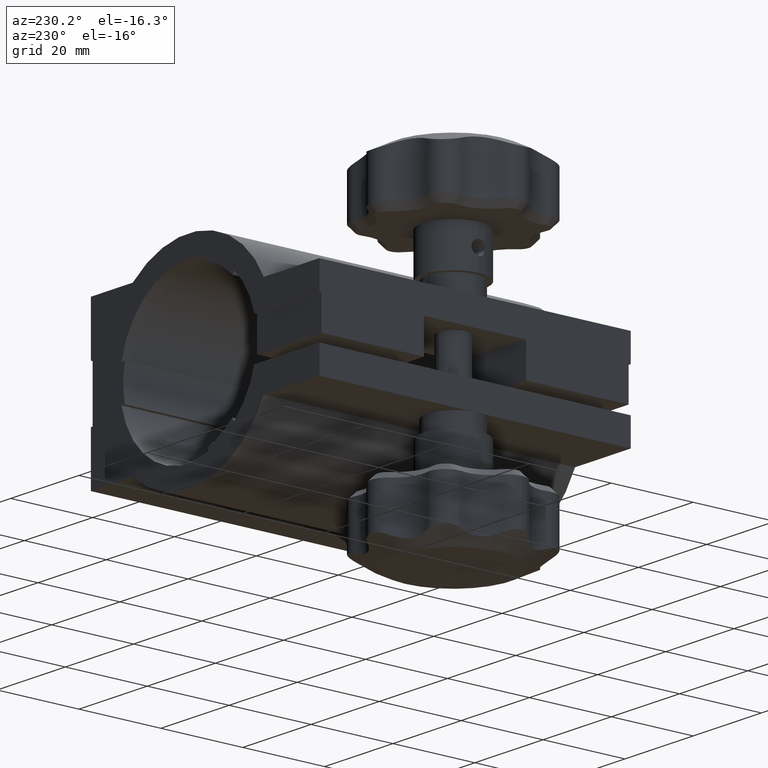
[diagram: clean part render]
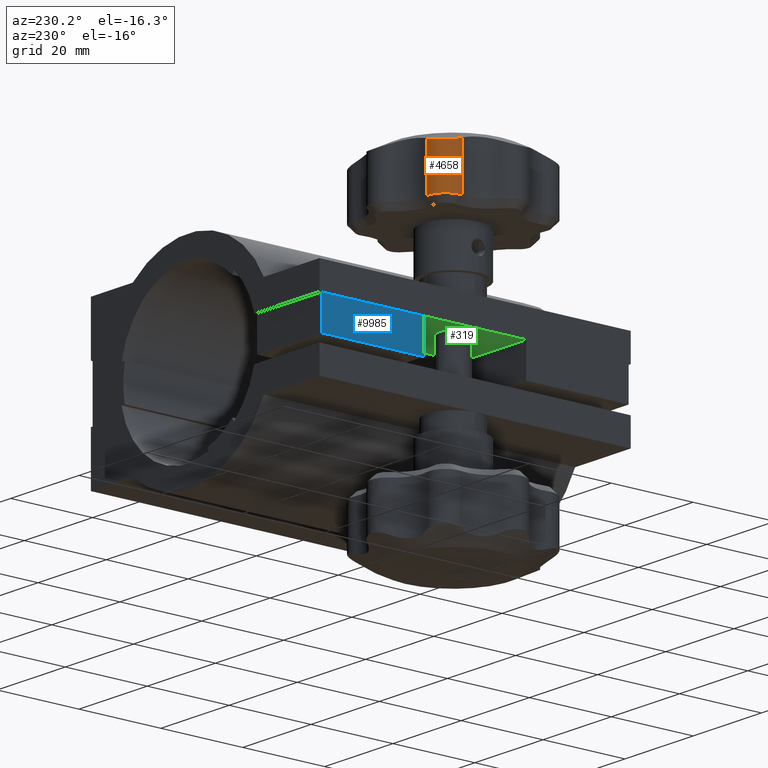
[diagram: same view with three faces highlighted in distinct colors, each labeled with its STEP entity id]
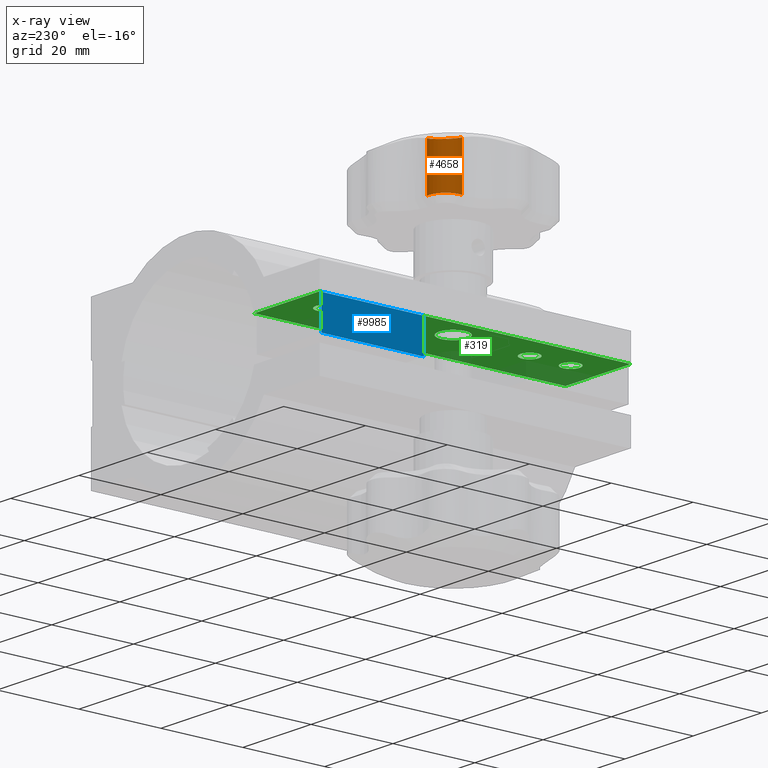
[diagram: x-ray of the same camera — body ghosted, the three highlighted faces saturated]
A machine part, auxiliary view with three faces highlighted in distinct colors.
The next image is the same camera in x-ray (body ghosted, the three faces saturated) — at least one of them is partly hidden behind the body in this view.
Their STEP definitions:

[orange] entity #4658 — the highlighted cylindrical surface (edge-blend (fillet) strip) has radius 3.9996 mm, axis along (-0, 0, -1).
#209 = ORIENTED_EDGE ( 'NONE', *, *, #9528, .T. ) ;
#216 = DIRECTION ( 'NONE',  ( -5.744216728366652700E-017, 1.068136628142174300E-018, -1.000000000000000000 ) ) ;
#434 = FACE_OUTER_BOUND ( 'NONE', #6749, .T. ) ;
#741 = ORIENTED_EDGE ( 'NONE', *, *, #7880, .T. ) ;
#1422 = CARTESIAN_POINT ( 'NONE',  ( -44.85279802072815200, -22.95083891127139400, 37.63736774476461700 ) ) ;
#1492 = CARTESIAN_POINT ( 'NONE',  ( -47.39795324385067900, -27.15971093928271800, 38.12596214254276100 ) ) ;
#1835 = CARTESIAN_POINT ( 'NONE',  ( -42.62832790717669000, -22.76452063433292100, 38.24033585891610400 ) ) ;
#1838 = CIRCLE ( 'NONE', #2938, 3.999638659272490400 ) ;
#1937 = VERTEX_POINT ( 'NONE', #9582 ) ;
#1958 = EDGE_CURVE ( 'NONE', #1937, #5986, #8323, .T. ) ;
#2247 = CARTESIAN_POINT ( 'NONE',  ( -46.47931321446090200, -24.09531898611165700, 37.50011448571287800 ) ) ;
#2301 = VERTEX_POINT ( 'NONE', #8770 ) ;
#2530 = CARTESIAN_POINT ( 'NONE',  ( -42.62832790717669000, -22.76452063433289700, 27.00000000000001100 ) ) ;
#2938 = AXIS2_PLACEMENT_3D ( 'NONE', #6751, #10058, #6610 ) ;
#3146 = CARTESIAN_POINT ( 'NONE',  ( -45.30747206479046700, -23.15944995574653100, 37.56706851643817700 ) ) ;
#3351 = VERTEX_POINT ( 'NONE', #2530 ) ;
#3408 = DIRECTION ( 'NONE',  ( 1.000000000000000000, -8.674400983474555500E-016, 0.0000000000000000000 ) ) ;
#3538 = CIRCLE ( 'NONE', #5726, 3.999638659272490400 ) ;
#3938 = CARTESIAN_POINT ( 'NONE',  ( -47.33547936566713300, -27.47167209282341100, 38.24033585891610400 ) ) ;
#3973 = CARTESIAN_POINT ( 'NONE',  ( -47.39676900332204200, -26.20088793460287800, 37.84158332470187200 ) ) ;
#4310 = CARTESIAN_POINT ( 'NONE',  ( -42.62832790717669000, -22.76452063433292100, 40.49999999999996400 ) ) ;
#4374 = ORIENTED_EDGE ( 'NONE', *, *, #5686, .F. ) ;
#4552 = VECTOR ( 'NONE', #4881, 1000.000000000000000 ) ;
#4640 = VERTEX_POINT ( 'NONE', #1835 ) ;
#4658 = ADVANCED_FACE ( 'NONE', ( #434 ), #8747, .T. ) ;
#4676 = B_SPLINE_CURVE_WITH_KNOTS ( 'NONE', 3,
 ( #7280, #5599, #9769, #9874, #10697, #4788, #8132, #9007, #1422, #4901, #3146, #5667, #9038, #2247, #9803, #8068, #5750, #6430, #10589, #8974, #3973, #7241, #1492, #3938 ),
 .UNSPECIFIED., .F., .F.,
 ( 4, 2, 2, 2, 2, 2, 2, 2, 2, 2, 2, 4 ),
 ( 2.138698642105214700E-007, 0.001000929719184339300, 0.001501287643844403600, 0.002001645568504467700, 0.002502003493164532300, 0.003002361417824596400, 0.004003077267144722900, 0.005003793116464848500, 0.005504151041124915600, 0.006004508965784981900, 0.007005224815105136200, 0.008005940664425290400 ),
 .UNSPECIFIED. ) ;
#4788 = CARTESIAN_POINT ( 'NONE',  ( -44.22546935347906300, -22.76647890536097000, 37.76518380246591300 ) ) ;
#4881 = DIRECTION ( 'NONE',  ( -5.744216728366652700E-017, 1.068136628142174300E-018, -1.000000000000000000 ) ) ;
#4901 = CARTESIAN_POINT ( 'NONE',  ( -45.15694850998780700, -23.08272396788176600, 37.58808820424980000 ) ) ;
#5067 = CARTESIAN_POINT ( 'NONE',  ( -43.41370849898481100, -26.68629150101525100, 40.49999999999996400 ) ) ;
#5599 = CARTESIAN_POINT ( 'NONE',  ( -42.94026814796043800, -22.70205094417412900, 38.12596980974652200 ) ) ;
#5667 = CARTESIAN_POINT ( 'NONE',  ( -45.73824124013601300, -23.41443786194445000, 37.51709815624107600 ) ) ;
#5686 = EDGE_CURVE ( 'NONE', #4640, #1937, #4676, .T. ) ;
#5726 = AXIS2_PLACEMENT_3D ( 'NONE', #7471, #8169, #9839 ) ;
#5750 = CARTESIAN_POINT ( 'NONE',  ( -47.01633345922389400, -24.94105235144986900, 37.58778657505536100 ) ) ;
#5986 = VERTEX_POINT ( 'NONE', #8677 ) ;
#6112 = AXIS2_PLACEMENT_3D ( 'NONE', #5067, #9157, #3408 ) ;
#6139 = LINE ( 'NONE', #4310, #10529 ) ;
#6430 = CARTESIAN_POINT ( 'NONE',  ( -47.14878044121587700, -25.24615127184601000, 37.63717544867557100 ) ) ;
#6610 = DIRECTION ( 'NONE',  ( -1.000000000000000000, 8.674400983474555500E-016, 0.0000000000000000000 ) ) ;
#6749 = EDGE_LOOP ( 'NONE', ( #8707, #209, #741, #10211, #4374 ) ) ;
#6751 = CARTESIAN_POINT ( 'NONE',  ( -43.41370849898479600, -26.68629150101525100, 27.00000000000001100 ) ) ;
#7072 = EDGE_CURVE ( 'NONE', #4640, #3351, #6139, .T. ) ;
#7241 = CARTESIAN_POINT ( 'NONE',  ( -47.42317277148750800, -26.84308388291383800, 38.02363117736457800 ) ) ;
#7280 = CARTESIAN_POINT ( 'NONE',  ( -42.62832790717669000, -22.76452063433292100, 38.24033585891610400 ) ) ;
#7471 = CARTESIAN_POINT ( 'NONE',  ( -43.41370849898479600, -26.68629150101525100, 27.00000000000001100 ) ) ;
#7880 = EDGE_CURVE ( 'NONE', #2301, #5986, #3538, .T. ) ;
#8068 = CARTESIAN_POINT ( 'NONE',  ( -46.93961310875495500, -24.79080392035385900, 37.56684448148188700 ) ) ;
#8132 = CARTESIAN_POINT ( 'NONE',  ( -44.38462221413450200, -22.80284501860700200, 37.72960049356522200 ) ) ;
#8169 = DIRECTION ( 'NONE',  ( 5.744216728366652700E-017, -1.068136628142174300E-018, 1.000000000000000000 ) ) ;
#8323 = LINE ( 'NONE', #10570, #4552 ) ;
#8677 = CARTESIAN_POINT ( 'NONE',  ( -47.33547936566711900, -27.47167209282341100, 27.00000000000001400 ) ) ;
#8707 = ORIENTED_EDGE ( 'NONE', *, *, #7072, .T. ) ;
#8747 = CYLINDRICAL_SURFACE ( 'NONE', #6112, 3.999638659272490400 ) ;
#8770 = CARTESIAN_POINT ( 'NONE',  ( -47.41334715825727400, -26.68629150101525100, 27.00000000000001100 ) ) ;
#8974 = CARTESIAN_POINT ( 'NONE',  ( -47.34347505883442900, -25.87294497304557300, 37.76170017255969900 ) ) ;
#9007 = CARTESIAN_POINT ( 'NONE',  ( -44.69828612999259600, -22.89502649657290300, 37.66569268401078600 ) ) ;
#9038 = CARTESIAN_POINT ( 'NONE',  ( -46.00166590177387600, -23.61814102786626500, 37.50024724159735000 ) ) ;
#9157 = DIRECTION ( 'NONE',  ( -5.744216728366652700E-017, 1.068136628142174300E-018, -1.000000000000000000 ) ) ;
#9528 = EDGE_CURVE ( 'NONE', #3351, #2301, #1838, .T. ) ;
#9582 = CARTESIAN_POINT ( 'NONE',  ( -47.33547936566713300, -27.47167209282341100, 38.24033585891610400 ) ) ;
#9769 = CARTESIAN_POINT ( 'NONE',  ( -43.25710625937504300, -22.67678188941502500, 38.02355978083539900 ) ) ;
#9803 = CARTESIAN_POINT ( 'NONE',  ( -46.68478337521381100, -24.36072772368684300, 37.51702702024472600 ) ) ;
#9839 = DIRECTION ( 'NONE',  ( -1.000000000000000000, 8.674400983474555500E-016, 0.0000000000000000000 ) ) ;
#9874 = CARTESIAN_POINT ( 'NONE',  ( -43.73945824390319400, -22.69669351951546000, 37.88685030365017100 ) ) ;
#10058 = DIRECTION ( 'NONE',  ( 5.744216728366652700E-017, -1.068136628142174300E-018, 1.000000000000000000 ) ) ;
#10211 = ORIENTED_EDGE ( 'NONE', *, *, #1958, .F. ) ;
#10529 = VECTOR ( 'NONE', #216, 1000.000000000000000 ) ;
#10570 = CARTESIAN_POINT ( 'NONE',  ( -47.33547936566714800, -27.47167209282341100, 40.49999999999996400 ) ) ;
#10589 = CARTESIAN_POINT ( 'NONE',  ( -47.20479314949079000, -25.40112276749178100, 37.66557426353955400 ) ) ;
#10697 = CARTESIAN_POINT ( 'NONE',  ( -43.90255016953159400, -22.71326742720494700, 37.84386468517838900 ) ) ;

[blue] entity #9985 — the highlighted planar face has unit normal (1, -0, 0).
#559 = LINE ( 'NONE', #9313, #1337 ) ;
#1222 = EDGE_CURVE ( 'NONE', #8828, #10396, #2681, .T. ) ;
#1337 = VECTOR ( 'NONE', #7480, 1000.000000000000000 ) ;
#1488 = ORIENTED_EDGE ( 'NONE', *, *, #2632, .F. ) ;
#1575 = VECTOR ( 'NONE', #5682, 1000.000000000000000 ) ;
#1685 = CARTESIAN_POINT ( 'NONE',  ( -38.49999999999986500, -25.50000000000016700, 5.000000000000114600 ) ) ;
#1936 = ORIENTED_EDGE ( 'NONE', *, *, #1222, .T. ) ;
#2007 = CARTESIAN_POINT ( 'NONE',  ( -38.49999999999985100, -25.50000000000016700, -2.999999999999882300 ) ) ;
#2216 = PLANE ( 'NONE',  #6692 ) ;
#2632 = EDGE_CURVE ( 'NONE', #8633, #10396, #6120, .T. ) ;
#2681 = LINE ( 'NONE', #7752, #7222 ) ;
#3662 = EDGE_CURVE ( 'NONE', #7944, #8828, #7400, .T. ) ;
#3877 = DIRECTION ( 'NONE',  ( 1.000000000000000000, -2.896988204881273000E-015, 3.011282145118054400E-016 ) ) ;
#4271 = VECTOR ( 'NONE', #8574, 1000.000000000000000 ) ;
#4516 = CARTESIAN_POINT ( 'NONE',  ( -38.49999999999993600, -0.5000000000000359700, -2.999999999999993800 ) ) ;
#4606 = EDGE_CURVE ( 'NONE', #7944, #8633, #559, .T. ) ;
#4911 = CARTESIAN_POINT ( 'NONE',  ( -38.49999999999986500, -25.50000000000016700, 5.000000000000114600 ) ) ;
#5259 = DIRECTION ( 'NONE',  ( 3.011282145118056900E-016, 8.314313866055646900E-017, -1.000000000000000000 ) ) ;
#5682 = DIRECTION ( 'NONE',  ( -2.543104615781996800E-015, 1.000000000000000000, 8.314313866055995700E-017 ) ) ;
#6120 = LINE ( 'NONE', #2007, #4271 ) ;
#6173 = CARTESIAN_POINT ( 'NONE',  ( -38.49999999999985100, -25.50000000000016700, -2.999999999999882300 ) ) ;
#6692 = AXIS2_PLACEMENT_3D ( 'NONE', #8029, #3877, #9699 ) ;
#7222 = VECTOR ( 'NONE', #5259, 1000.000000000000000 ) ;
#7400 = LINE ( 'NONE', #1685, #1575 ) ;
#7480 = DIRECTION ( 'NONE',  ( 3.011282145118056900E-016, 8.314313866055646900E-017, -1.000000000000000000 ) ) ;
#7752 = CARTESIAN_POINT ( 'NONE',  ( -38.49999999999993600, -0.5000000000000359700, -2.999999999999993800 ) ) ;
#7944 = VERTEX_POINT ( 'NONE', #4911 ) ;
#8029 = CARTESIAN_POINT ( 'NONE',  ( -38.49999999999985100, -25.50000000000016700, -2.999999999999882300 ) ) ;
#8574 = DIRECTION ( 'NONE',  ( -2.543104615781996800E-015, 1.000000000000000000, 8.314313866055995700E-017 ) ) ;
#8633 = VERTEX_POINT ( 'NONE', #6173 ) ;
#8828 = VERTEX_POINT ( 'NONE', #9057 ) ;
#9057 = CARTESIAN_POINT ( 'NONE',  ( -38.49999999999995000, -0.4999999999999950000, 5.000000000000000000 ) ) ;
#9062 = ORIENTED_EDGE ( 'NONE', *, *, #3662, .T. ) ;
#9313 = CARTESIAN_POINT ( 'NONE',  ( -38.49999999999985100, -25.50000000000016700, -2.999999999999882300 ) ) ;
#9699 = DIRECTION ( 'NONE',  ( -3.011282145118056900E-016, -8.314313866055646900E-017, 1.000000000000000000 ) ) ;
#9781 = ORIENTED_EDGE ( 'NONE', *, *, #4606, .F. ) ;
#9985 = ADVANCED_FACE ( 'NONE', ( #10640 ), #2216, .F. ) ;
#10396 = VERTEX_POINT ( 'NONE', #4516 ) ;
#10640 = FACE_OUTER_BOUND ( 'NONE', #10758, .T. ) ;
#10758 = EDGE_LOOP ( 'NONE', ( #1936, #1488, #9781, #9062 ) ) ;

[green] entity #319 — the highlighted planar face has unit normal (0, 0, 1).
#143 = LINE ( 'NONE', #5456, #6145 ) ;
#147 = DIRECTION ( 'NONE',  ( -1.000000000000000000, 0.0000000000000000000, 0.0000000000000000000 ) ) ;
#149 = CARTESIAN_POINT ( 'NONE',  ( -30.50000000000000000, -68.00000000000000000, 5.000000000000005300 ) ) ;
#187 = EDGE_CURVE ( 'NONE', #9054, #8763, #4523, .T. ) ;
#255 = FACE_BOUND ( 'NONE', #6343, .T. ) ;
#319 = ADVANCED_FACE ( 'NONE', ( #2961, #5569, #5314, #255, #8296, #4927 ), #3697, .F. ) ;
#525 = CARTESIAN_POINT ( 'NONE',  ( -30.50000000000002800, -65.75000000000000000, 5.000000000000005300 ) ) ;
#629 = CARTESIAN_POINT ( 'NONE',  ( -30.50000000000001400, -5.750000000000007100, 5.000000000000116400 ) ) ;
#667 = CARTESIAN_POINT ( 'NONE',  ( -30.49999999999997200, -18.00000000000002800, 5.000000000000116400 ) ) ;
#737 = CARTESIAN_POINT ( 'NONE',  ( -30.50000000000001400, -60.25000000000000000, 5.000000000000060400 ) ) ;
#937 = VECTOR ( 'NONE', #4888, 1000.000000000000000 ) ;
#1044 = CARTESIAN_POINT ( 'NONE',  ( -19.36491673103705900, -4.670380115139154700E-031, 5.000000000000116400 ) ) ;
#1157 = DIRECTION ( 'NONE',  ( 8.354081441042303400E-017, 1.011113220803298800E-031, 1.000000000000000000 ) ) ;
#1177 = CARTESIAN_POINT ( 'NONE',  ( -30.49999999999997200, -18.00000000000002800, 5.000000000000116400 ) ) ;
#1263 = ORIENTED_EDGE ( 'NONE', *, *, #2240, .T. ) ;
#1321 = DIRECTION ( 'NONE',  ( 8.354081441042235600E-017, 1.011113220803298800E-031, 1.000000000000000000 ) ) ;
#1381 = EDGE_CURVE ( 'NONE', #5412, #7011, #10585, .T. ) ;
#1491 = DIRECTION ( 'NONE',  ( 8.354081441042303400E-017, 1.011113220803298800E-031, 1.000000000000000000 ) ) ;
#1517 = AXIS2_PLACEMENT_3D ( 'NONE', #5119, #1856, #147 ) ;
#1531 = EDGE_CURVE ( 'NONE', #5050, #2460, #3298, .T. ) ;
#1717 = CIRCLE ( 'NONE', #4607, 2.250000000000001800 ) ;
#1720 = DIRECTION ( 'NONE',  ( 8.354081441042303400E-017, 1.011113220803298800E-031, 1.000000000000000000 ) ) ;
#1722 = CIRCLE ( 'NONE', #7517, 2.250000000000001800 ) ;
#1739 = EDGE_LOOP ( 'NONE', ( #5414, #1263 ) ) ;
#1856 = DIRECTION ( 'NONE',  ( 8.354081441042303400E-017, 1.011113220803298800E-031, 1.000000000000000000 ) ) ;
#1857 = CARTESIAN_POINT ( 'NONE',  ( -30.50000000000000000, -68.00000000000000000, 5.000000000000005300 ) ) ;
#2235 = DIRECTION ( 'NONE',  ( -5.925880749895129100E-031, 1.000000000000000000, 3.170080688461390700E-031 ) ) ;
#2240 = EDGE_CURVE ( 'NONE', #6548, #2687, #9996, .T. ) ;
#2331 = VERTEX_POINT ( 'NONE', #10495 ) ;
#2359 = CARTESIAN_POINT ( 'NONE',  ( -30.50000000000002800, -70.25000000000000000, 5.000000000000005300 ) ) ;
#2460 = VERTEX_POINT ( 'NONE', #2359 ) ;
#2472 = CARTESIAN_POINT ( 'NONE',  ( -30.50000000000001400, -10.25000000000000700, 5.000000000000116400 ) ) ;
#2588 = CARTESIAN_POINT ( 'NONE',  ( -38.49999999999997900, -2.775557561562891400E-014, 5.000000000000117200 ) ) ;
#2687 = VERTEX_POINT ( 'NONE', #5660 ) ;
#2873 = DIRECTION ( 'NONE',  ( 8.354081441042303400E-017, 1.011113220803298800E-031, 1.000000000000000000 ) ) ;
#2907 = DIRECTION ( 'NONE',  ( -1.000000000000000000, 0.0000000000000000000, 0.0000000000000000000 ) ) ;
#2961 = FACE_BOUND ( 'NONE', #8343, .T. ) ;
#3101 = ORIENTED_EDGE ( 'NONE', *, *, #9754, .T. ) ;
#3298 = CIRCLE ( 'NONE', #8511, 2.250000000000001800 ) ;
#3459 = CARTESIAN_POINT ( 'NONE',  ( -19.36491673103705900, -76.00000000000001400, 5.000000000000116400 ) ) ;
#3669 = DIRECTION ( 'NONE',  ( -1.000000000000000000, 0.0000000000000000000, 0.0000000000000000000 ) ) ;
#3697 = PLANE ( 'NONE',  #4124 ) ;
#3706 = AXIS2_PLACEMENT_3D ( 'NONE', #1857, #4160, #7613 ) ;
#3920 = CIRCLE ( 'NONE', #4422, 2.250000000000001800 ) ;
#3933 = CARTESIAN_POINT ( 'NONE',  ( -38.49999999999999300, -76.00000000000001400, 5.000000000000006200 ) ) ;
#4037 = CARTESIAN_POINT ( 'NONE',  ( -38.49999999999999300, -76.00000000000001400, 5.000000000000006200 ) ) ;
#4124 = AXIS2_PLACEMENT_3D ( 'NONE', #5452, #1321, #8760 ) ;
#4160 = DIRECTION ( 'NONE',  ( 8.354081441042303400E-017, 1.011113220803298800E-031, 1.000000000000000000 ) ) ;
#4422 = AXIS2_PLACEMENT_3D ( 'NONE', #1177, #5388, #3669 ) ;
#4493 = DIRECTION ( 'NONE',  ( 1.000000000000000000, -7.896584255449987700E-031, -8.354081441042235600E-017 ) ) ;
#4523 = CIRCLE ( 'NONE', #6171, 2.250000000000001800 ) ;
#4591 = CARTESIAN_POINT ( 'NONE',  ( -38.49999999999999300, -76.00000000000001400, 5.000000000000006200 ) ) ;
#4607 = AXIS2_PLACEMENT_3D ( 'NONE', #667, #1491, #10522 ) ;
#4857 = EDGE_CURVE ( 'NONE', #7713, #2331, #3920, .T. ) ;
#4877 = ORIENTED_EDGE ( 'NONE', *, *, #1381, .F. ) ;
#4888 = DIRECTION ( 'NONE',  ( 1.000000000000000000, -7.896584255449987700E-031, -8.354081441042235600E-017 ) ) ;
#4927 = FACE_OUTER_BOUND ( 'NONE', #9230, .T. ) ;
#5032 = CIRCLE ( 'NONE', #9096, 2.250000000000001800 ) ;
#5050 = VERTEX_POINT ( 'NONE', #525 ) ;
#5119 = CARTESIAN_POINT ( 'NONE',  ( -30.50000000000000000, -57.99999999999999300, 5.000000000000060400 ) ) ;
#5302 = CARTESIAN_POINT ( 'NONE',  ( -30.49999999999998600, -8.000000000000007100, 5.000000000000116400 ) ) ;
#5314 = FACE_BOUND ( 'NONE', #8735, .T. ) ;
#5388 = DIRECTION ( 'NONE',  ( 8.354081441042303400E-017, 1.011113220803298800E-031, 1.000000000000000000 ) ) ;
#5412 = VERTEX_POINT ( 'NONE', #3459 ) ;
#5414 = ORIENTED_EDGE ( 'NONE', *, *, #6855, .T. ) ;
#5452 = CARTESIAN_POINT ( 'NONE',  ( -38.49999999999999300, -76.00000000000001400, 5.000000000000006200 ) ) ;
#5456 = CARTESIAN_POINT ( 'NONE',  ( -38.49999999999997900, -2.775557561562891400E-014, 5.000000000000117200 ) ) ;
#5498 = ORIENTED_EDGE ( 'NONE', *, *, #8585, .T. ) ;
#5569 = FACE_BOUND ( 'NONE', #6517, .T. ) ;
#5638 = ORIENTED_EDGE ( 'NONE', *, *, #1531, .T. ) ;
#5660 = CARTESIAN_POINT ( 'NONE',  ( -32.10000000000001600, -41.50000000000002800, 5.000000000000116400 ) ) ;
#5713 = VERTEX_POINT ( 'NONE', #3933 ) ;
#5799 = VECTOR ( 'NONE', #10771, 1000.000000000000000 ) ;
#5904 = EDGE_CURVE ( 'NONE', #8763, #9054, #8537, .T. ) ;
#5906 = CARTESIAN_POINT ( 'NONE',  ( -30.49999999999998600, -8.000000000000007100, 5.000000000000116400 ) ) ;
#5962 = DIRECTION ( 'NONE',  ( 8.354081441042303400E-017, 1.011113220803298800E-031, 1.000000000000000000 ) ) ;
#5979 = ORIENTED_EDGE ( 'NONE', *, *, #10136, .T. ) ;
#6145 = VECTOR ( 'NONE', #4493, 1000.000000000000000 ) ;
#6171 = AXIS2_PLACEMENT_3D ( 'NONE', #9149, #1720, #8285 ) ;
#6181 = ORIENTED_EDGE ( 'NONE', *, *, #6344, .T. ) ;
#6192 = CARTESIAN_POINT ( 'NONE',  ( -32.09999999999995900, -38.00000000000003600, 5.000000000000116400 ) ) ;
#6304 = CARTESIAN_POINT ( 'NONE',  ( -30.50000000000000000, -20.25000000000003200, 5.000000000000116400 ) ) ;
#6343 = EDGE_LOOP ( 'NONE', ( #5979, #5638 ) ) ;
#6344 = EDGE_CURVE ( 'NONE', #9018, #9156, #5032, .T. ) ;
#6512 = CARTESIAN_POINT ( 'NONE',  ( -32.10000000000001600, -34.50000000000003600, 5.000000000000116400 ) ) ;
#6517 = EDGE_LOOP ( 'NONE', ( #10053, #6744 ) ) ;
#6523 = AXIS2_PLACEMENT_3D ( 'NONE', #7897, #2873, #2907 ) ;
#6548 = VERTEX_POINT ( 'NONE', #6512 ) ;
#6744 = ORIENTED_EDGE ( 'NONE', *, *, #9875, .T. ) ;
#6855 = EDGE_CURVE ( 'NONE', #2687, #6548, #7813, .T. ) ;
#7011 = VERTEX_POINT ( 'NONE', #1044 ) ;
#7365 = ORIENTED_EDGE ( 'NONE', *, *, #8837, .F. ) ;
#7383 = AXIS2_PLACEMENT_3D ( 'NONE', #6192, #8733, #9537 ) ;
#7464 = VERTEX_POINT ( 'NONE', #2588 ) ;
#7517 = AXIS2_PLACEMENT_3D ( 'NONE', #5302, #1157, #10372 ) ;
#7613 = DIRECTION ( 'NONE',  ( -1.000000000000000000, 0.0000000000000000000, 0.0000000000000000000 ) ) ;
#7686 = VECTOR ( 'NONE', #2235, 1000.000000000000000 ) ;
#7713 = VERTEX_POINT ( 'NONE', #6304 ) ;
#7812 = CIRCLE ( 'NONE', #3706, 2.250000000000001800 ) ;
#7813 = CIRCLE ( 'NONE', #6523, 3.499999999999996000 ) ;
#7897 = CARTESIAN_POINT ( 'NONE',  ( -32.09999999999995900, -38.00000000000003600, 5.000000000000116400 ) ) ;
#8205 = CARTESIAN_POINT ( 'NONE',  ( -19.36491673103705900, -76.00000000000001400, 5.000000000000116400 ) ) ;
#8285 = DIRECTION ( 'NONE',  ( -1.000000000000000000, 0.0000000000000000000, 0.0000000000000000000 ) ) ;
#8296 = FACE_BOUND ( 'NONE', #1739, .T. ) ;
#8343 = EDGE_LOOP ( 'NONE', ( #5498, #6181 ) ) ;
#8358 = DIRECTION ( 'NONE',  ( 8.354081441042303400E-017, 1.011113220803298800E-031, 1.000000000000000000 ) ) ;
#8511 = AXIS2_PLACEMENT_3D ( 'NONE', #149, #5962, #10121 ) ;
#8537 = CIRCLE ( 'NONE', #1517, 2.250000000000001800 ) ;
#8585 = EDGE_CURVE ( 'NONE', #9156, #9018, #1722, .T. ) ;
#8643 = ORIENTED_EDGE ( 'NONE', *, *, #5904, .T. ) ;
#8731 = EDGE_CURVE ( 'NONE', #5713, #7464, #9774, .T. ) ;
#8733 = DIRECTION ( 'NONE',  ( 8.354081441042303400E-017, 1.011113220803298800E-031, 1.000000000000000000 ) ) ;
#8735 = EDGE_LOOP ( 'NONE', ( #8748, #8643 ) ) ;
#8748 = ORIENTED_EDGE ( 'NONE', *, *, #187, .T. ) ;
#8760 = DIRECTION ( 'NONE',  ( -1.000000000000000000, 7.896584255449987700E-031, 8.354081441042235600E-017 ) ) ;
#8763 = VERTEX_POINT ( 'NONE', #8780 ) ;
#8780 = CARTESIAN_POINT ( 'NONE',  ( -30.50000000000001400, -55.74999999999999300, 5.000000000000060400 ) ) ;
#8837 = EDGE_CURVE ( 'NONE', #5713, #5412, #9526, .T. ) ;
#9018 = VERTEX_POINT ( 'NONE', #629 ) ;
#9054 = VERTEX_POINT ( 'NONE', #737 ) ;
#9096 = AXIS2_PLACEMENT_3D ( 'NONE', #5906, #8358, #10057 ) ;
#9149 = CARTESIAN_POINT ( 'NONE',  ( -30.50000000000000000, -57.99999999999999300, 5.000000000000060400 ) ) ;
#9156 = VERTEX_POINT ( 'NONE', #2472 ) ;
#9230 = EDGE_LOOP ( 'NONE', ( #3101, #4877, #7365, #9490 ) ) ;
#9490 = ORIENTED_EDGE ( 'NONE', *, *, #8731, .T. ) ;
#9526 = LINE ( 'NONE', #4037, #937 ) ;
#9537 = DIRECTION ( 'NONE',  ( -1.000000000000000000, 0.0000000000000000000, 0.0000000000000000000 ) ) ;
#9754 = EDGE_CURVE ( 'NONE', #7464, #7011, #143, .T. ) ;
#9774 = LINE ( 'NONE', #4591, #7686 ) ;
#9875 = EDGE_CURVE ( 'NONE', #2331, #7713, #1717, .T. ) ;
#9996 = CIRCLE ( 'NONE', #7383, 3.499999999999996000 ) ;
#10053 = ORIENTED_EDGE ( 'NONE', *, *, #4857, .T. ) ;
#10057 = DIRECTION ( 'NONE',  ( -1.000000000000000000, 0.0000000000000000000, 0.0000000000000000000 ) ) ;
#10121 = DIRECTION ( 'NONE',  ( -1.000000000000000000, 0.0000000000000000000, 0.0000000000000000000 ) ) ;
#10136 = EDGE_CURVE ( 'NONE', #2460, #5050, #7812, .T. ) ;
#10372 = DIRECTION ( 'NONE',  ( -1.000000000000000000, 0.0000000000000000000, 0.0000000000000000000 ) ) ;
#10495 = CARTESIAN_POINT ( 'NONE',  ( -30.50000000000000000, -15.75000000000002800, 5.000000000000116400 ) ) ;
#10522 = DIRECTION ( 'NONE',  ( -1.000000000000000000, 0.0000000000000000000, 0.0000000000000000000 ) ) ;
#10585 = LINE ( 'NONE', #8205, #5799 ) ;
#10771 = DIRECTION ( 'NONE',  ( -5.925880749895129100E-031, 1.000000000000000000, 3.170080688461390700E-031 ) ) ;